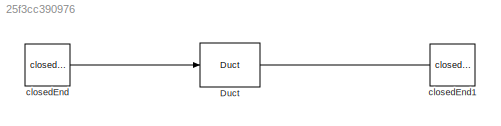
MODEL slx_25f3cc390976
KIND model
CONFIG AbsTol = auto
CONFIG FixedStep = 1.0
CONFIG MaxStep = auto
CONFIG MinStep = auto
CONFIG RelTol = 1e-3
CONFIG SampleTimeConstraint = Unconstrained
CONFIG Solver = FixedStepDiscrete
CONFIG SolverMode = Auto
CONFIG SolverName = FixedStepDiscrete
CONFIG StartTime = 0.0
CONFIG StopTime = 1.0
BLOCK [Reference] Duct  REF=taXlibrary/Duct
  AttributesFormatString = %<l> m
  Ports = [1, 1]
  SourceBlock = taXlibrary/Duct
  element = Duct
  l = 0.5
  minres = 40
  order = 3
  sensorPositions = []
BLOCK [Reference] closedEnd  REF=taXlibrary/closedEnd
  A = 1
  Mach = 0.1
  Ports = [0, 1]
  SourceBlock = taXlibrary/closedEnd
  c = 100
  element = closedEnd
  loc = Upstream
  rho = 1.2
BLOCK [Reference] closedEnd1  REF=taXlibrary/closedEnd
  A = []
  Mach = []
  Ports = [1]
  SourceBlock = taXlibrary/closedEnd
  c = []
  element = closedEnd
  loc = Downstream
  rho = []
LINE Duct:1 -> closedEnd1:1
LINE closedEnd:1 -> Duct:1
